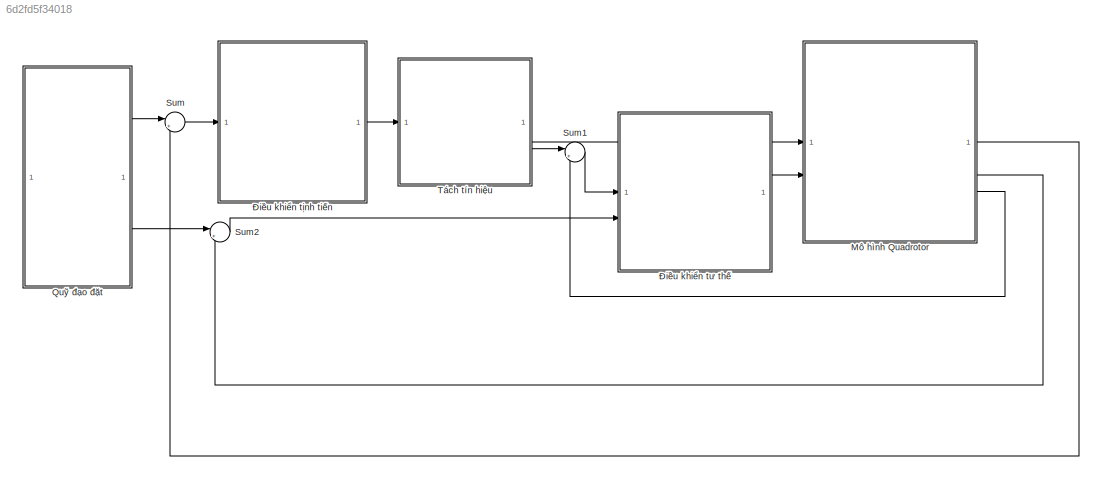
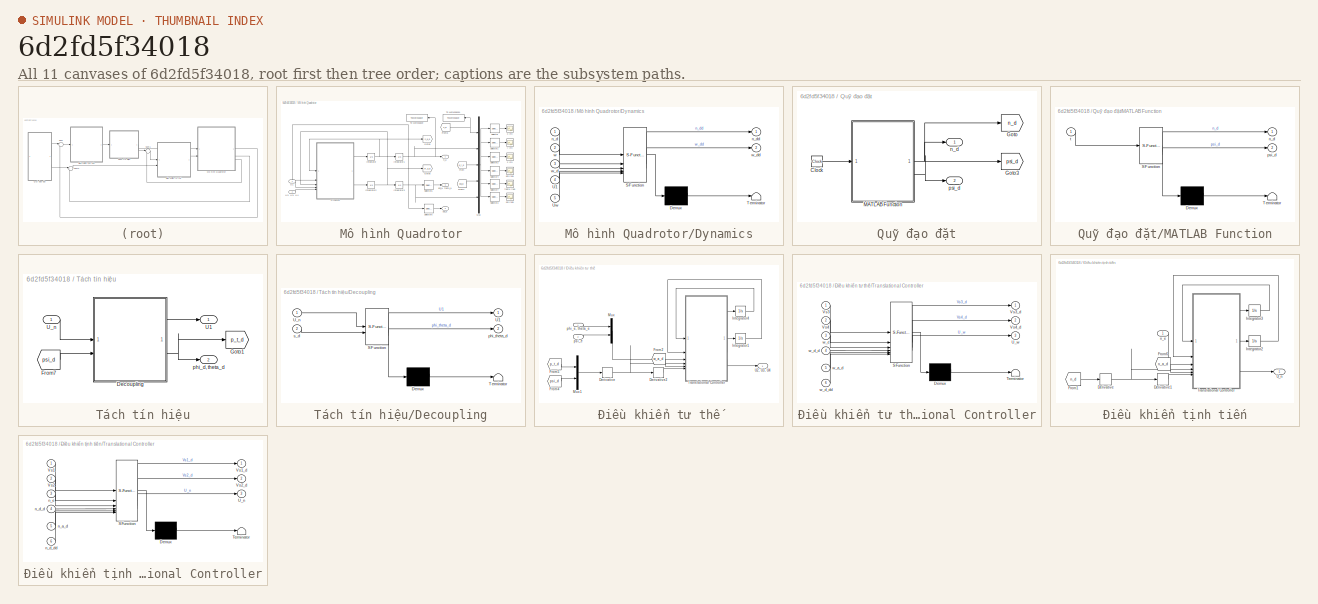
[diagram: thumbnail index - all 11 canvases of the model, root first then tree order]
MODEL slx_6d2fd5f34018
KIND model
CONFIG AbsTol = auto
CONFIG EnableMultiTasking = on
CONFIG FixedStep = 0.08
CONFIG MaxStep = auto
CONFIG MinStep = auto
CONFIG RelTol = 1e-3
CONFIG SampleTimeConstraint = Unconstrained
CONFIG SolverName = ode2
CONFIG StartTime = 0.0
CONFIG StopTime = 100
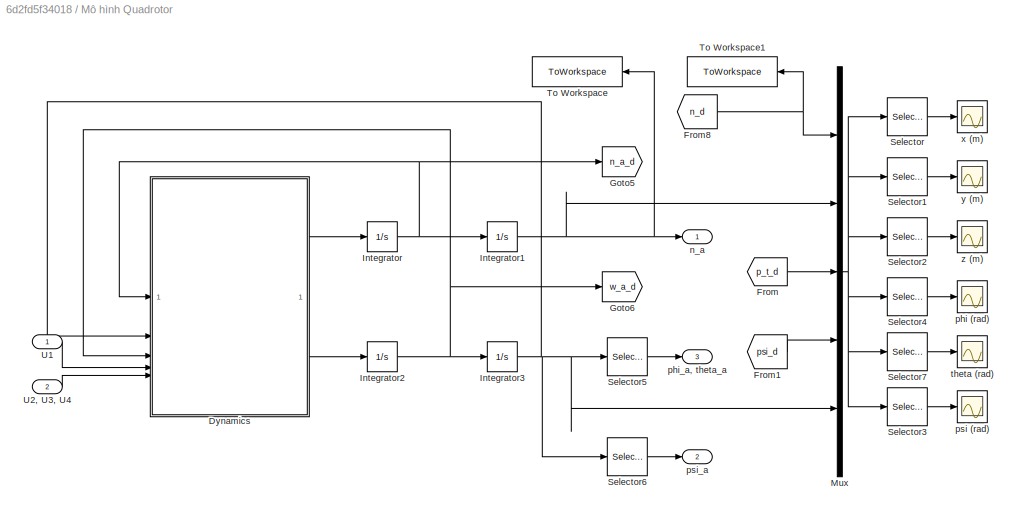
BLOCK [SubSystem] Mô hình Quadrotor
BLOCK [SubSystem] Mô hình Quadrotor/Dynamics
  ErrorFcn = Stateflow.Translate.translate
  PermitHierarchicalResolution = ExplicitOnly
  SFBlockType = MATLAB Function
  TreatAsAtomicUnit = on
BLOCK [Demux] Mô hình Quadrotor/Dynamics/ Demux 
  Outputs = 1
BLOCK [S-Function] Mô hình Quadrotor/Dynamics/ SFunction 
  EnableBusSupport = on
  FunctionName = sf_sfun
  PortCounts = [5 3]
  SFcnIsStateOwnerBlock = off
  SFunctionDeploymentMode = off
  Tag = Stateflow S-Function 1
BLOCK [Terminator] Mô hình Quadrotor/Dynamics/ Terminator 
BLOCK [Inport] Mô hình Quadrotor/Dynamics/U1
  Port = 4
BLOCK [Inport] Mô hình Quadrotor/Dynamics/Uw
  Port = 5
BLOCK [Inport] Mô hình Quadrotor/Dynamics/n_d
BLOCK [Outport] Mô hình Quadrotor/Dynamics/n_dd
BLOCK [Inport] Mô hình Quadrotor/Dynamics/w
  Port = 2
BLOCK [Inport] Mô hình Quadrotor/Dynamics/w_d
  Port = 3
BLOCK [Outport] Mô hình Quadrotor/Dynamics/w_dd
  Port = 2
BLOCK [From] Mô hình Quadrotor/From
  GotoTag = p_t_d
  TagVisibility = global
BLOCK [From] Mô hình Quadrotor/From1
  GotoTag = psi_d
  TagVisibility = global
BLOCK [From] Mô hình Quadrotor/From8
  GotoTag = n_d
  TagVisibility = global
BLOCK [Goto] Mô hình Quadrotor/Goto5
  GotoTag = n_a_d
  TagVisibility = global
BLOCK [Goto] Mô hình Quadrotor/Goto6
  GotoTag = w_a_d
  TagVisibility = global
BLOCK [Integrator] Mô hình Quadrotor/Integrator
  InitialCondition = [0, 0, 0]'
BLOCK [Integrator] Mô hình Quadrotor/Integrator1
  InitialCondition = [0, 0, 0]'
BLOCK [Integrator] Mô hình Quadrotor/Integrator2
  InitialCondition = [0, 0, 0]'
BLOCK [Integrator] Mô hình Quadrotor/Integrator3
  InitialCondition = [0, 0, 0]'
BLOCK [Mux] Mô hình Quadrotor/Mux
  DisplayOption = bar
  Inputs = 5
BLOCK [Selector] Mô hình Quadrotor/Selector
  IndexOptions = Index vector (dialog)
  Indices = [4 1]
  InputPortWidth = 12
  OutputSizes = 1
BLOCK [Selector] Mô hình Quadrotor/Selector1
  IndexOptions = Index vector (dialog)
  Indices = [5 2]
  InputPortWidth = 12
  OutputSizes = 1
BLOCK [Selector] Mô hình Quadrotor/Selector2
  IndexOptions = Index vector (dialog)
  Indices = [6 3]
  InputPortWidth = 12
  OutputSizes = 1
BLOCK [Selector] Mô hình Quadrotor/Selector3
  IndexOptions = Index vector (dialog)
  Indices = [12 9]
  InputPortWidth = 12
  OutputSizes = 1
BLOCK [Selector] Mô hình Quadrotor/Selector4
  IndexOptions = Index vector (dialog)
  Indices = [10 7]
  InputPortWidth = 12
  OutputSizes = 1
BLOCK [Selector] Mô hình Quadrotor/Selector5
  IndexOptions = Index vector (dialog)
  Indices = [1 2]
  InputPortWidth = 3
  OutputSizes = 1
BLOCK [Selector] Mô hình Quadrotor/Selector6
  IndexOptions = Index vector (dialog)
  Indices = [3]
  InputPortWidth = 3
  OutputSizes = 1
BLOCK [Selector] Mô hình Quadrotor/Selector7
  IndexOptions = Index vector (dialog)
  Indices = [11 8]
  InputPortWidth = 12
  OutputSizes = 1
BLOCK [ToWorkspace] Mô hình Quadrotor/To Workspace
  FixptAsFi = on
  MaxDataPoints = inf
  SampleTime = -1
  VariableName = n_a
BLOCK [ToWorkspace] Mô hình Quadrotor/To Workspace1
  FixptAsFi = on
  MaxDataPoints = inf
  SampleTime = -1
  VariableName = n_d
BLOCK [Inport] Mô hình Quadrotor/U1
BLOCK [Inport] Mô hình Quadrotor/U2, U3, U4
  Port = 2
BLOCK [Outport] Mô hình Quadrotor/n_a
BLOCK [Scope] Mô hình Quadrotor/phi (rad)
  Floating = off
  NumInputPorts = 1
  ScopeSpecificationString = Simulink.scopes.TimeScopeBlockCfg('CurrentConfiguration', extmgr.ConfigurationSet(extmgr.Configuration('Core','General UI',true,'FigureColor',[0.941176470588235 0.941176470588235 0.941176470588235]),extmgr.Configuration('Core','Source UI',true),extmgr.Configuration('Sources','WiredSimulink',true,'DataLoggingVariableName','ScopeData1'),extmgr.Configuration('Visuals','Time Domain',true,'SerializedDi...<+1888ch>
BLOCK [Outport] Mô hình Quadrotor/phi_a, theta_a
  Port = 3
BLOCK [Scope] Mô hình Quadrotor/psi (rad)
  Floating = off
  NumInputPorts = 1
  ScopeSpecificationString = Simulink.scopes.TimeScopeBlockCfg('CurrentConfiguration', extmgr.ConfigurationSet(extmgr.Configuration('Core','General UI',true,'FigureColor',[0.941176470588235 0.941176470588235 0.941176470588235]),extmgr.Configuration('Core','Source UI',true),extmgr.Configuration('Sources','WiredSimulink',true,'DataLoggingVariableName','ScopeData1'),extmgr.Configuration('Visuals','Time Domain',true,'SerializedDi...<+1893ch>
BLOCK [Outport] Mô hình Quadrotor/psi_a
  Port = 2
BLOCK [Scope] Mô hình Quadrotor/theta (rad)
  Floating = off
  NumInputPorts = 1
  ScopeSpecificationString = Simulink.scopes.TimeScopeBlockCfg('CurrentConfiguration', extmgr.ConfigurationSet(extmgr.Configuration('Core','General UI',true,'FigureColor',[0.941176470588235 0.941176470588235 0.941176470588235]),extmgr.Configuration('Core','Source UI',true),extmgr.Configuration('Sources','WiredSimulink',true,'DataLoggingVariableName','ScopeData2'),extmgr.Configuration('Visuals','Time Domain',true,'SerializedDi...<+1898ch>
BLOCK [Scope] Mô hình Quadrotor/x (m)
  Floating = off
  NumInputPorts = 1
  ScopeSpecificationString = Simulink.scopes.TimeScopeBlockCfg('CurrentConfiguration', extmgr.ConfigurationSet(extmgr.Configuration('Core','General UI',true,'FigureColor',[0.941176470588235 0.941176470588235 0.941176470588235]),extmgr.Configuration('Core','Source UI',true),extmgr.Configuration('Sources','WiredSimulink',true,'DataLoggingVariableName','ScopeData2'),extmgr.Configuration('Visuals','Time Domain',true,'SerializedDi...<+1869ch>
BLOCK [Scope] Mô hình Quadrotor/y (m)
  Floating = off
  NumInputPorts = 1
  ScopeSpecificationString = Simulink.scopes.TimeScopeBlockCfg('CurrentConfiguration', extmgr.ConfigurationSet(extmgr.Configuration('Core','General UI',true,'FigureColor',[0.941176470588235 0.941176470588235 0.941176470588235]),extmgr.Configuration('Core','Source UI',true),extmgr.Configuration('Sources','WiredSimulink',true,'DataLoggingVariableName','ScopeData3'),extmgr.Configuration('Visuals','Time Domain',true,'SerializedDi...<+1873ch>
BLOCK [Scope] Mô hình Quadrotor/z (m)
  Floating = off
  NumInputPorts = 1
  ScopeSpecificationString = Simulink.scopes.TimeScopeBlockCfg('CurrentConfiguration', extmgr.ConfigurationSet(extmgr.Configuration('Core','General UI',true,'FigureColor',[0.941176470588235 0.941176470588235 0.941176470588235]),extmgr.Configuration('Core','Source UI',true),extmgr.Configuration('Sources','WiredSimulink',true),extmgr.Configuration('Visuals','Time Domain',true,'SerializedDisplays',{struct('MinYLimReal','-2.75','...<+1815ch>
BLOCK [SubSystem] Quỹ đạo đặt
BLOCK [Clock] Quỹ đạo đặt/Clock
BLOCK [Goto] Quỹ đạo đặt/Goto
  GotoTag = n_d
  TagVisibility = global
BLOCK [Goto] Quỹ đạo đặt/Goto3
  GotoTag = psi_d
  TagVisibility = global
BLOCK [SubSystem] Quỹ đạo đặt/MATLAB Function
  ErrorFcn = Stateflow.Translate.translate
  PermitHierarchicalResolution = ExplicitOnly
  SFBlockType = MATLAB Function
  TreatAsAtomicUnit = on
BLOCK [Demux] Quỹ đạo đặt/MATLAB Function/ Demux 
  Outputs = 1
BLOCK [S-Function] Quỹ đạo đặt/MATLAB Function/ SFunction 
  EnableBusSupport = on
  FunctionName = sf_sfun
  PortCounts = [1 3]
  SFcnIsStateOwnerBlock = off
  SFunctionDeploymentMode = off
  Tag = Stateflow S-Function 4
BLOCK [Terminator] Quỹ đạo đặt/MATLAB Function/ Terminator 
BLOCK [Outport] Quỹ đạo đặt/MATLAB Function/n_d
BLOCK [Outport] Quỹ đạo đặt/MATLAB Function/psi_d
  Port = 2
BLOCK [Inport] Quỹ đạo đặt/MATLAB Function/t
BLOCK [Outport] Quỹ đạo đặt/n_d
BLOCK [Outport] Quỹ đạo đặt/psi_d
  Port = 2
BLOCK [Sum] Sum
  Inputs = |+-
BLOCK [Sum] Sum1
  Inputs = |+-
BLOCK [Sum] Sum2
  Inputs = |+-
BLOCK [SubSystem] Tách tín hiệu
BLOCK [SubSystem] Tách tín hiệu/Decoupling
  ErrorFcn = Stateflow.Translate.translate
  PermitHierarchicalResolution = ExplicitOnly
  SFBlockType = MATLAB Function
  TreatAsAtomicUnit = on
BLOCK [Demux] Tách tín hiệu/Decoupling/ Demux 
  Outputs = 1
BLOCK [S-Function] Tách tín hiệu/Decoupling/ SFunction 
  EnableBusSupport = on
  FunctionName = sf_sfun
  PortCounts = [2 3]
  SFcnIsStateOwnerBlock = off
  SFunctionDeploymentMode = off
  Tag = Stateflow S-Function 3
BLOCK [Terminator] Tách tín hiệu/Decoupling/ Terminator 
BLOCK [Outport] Tách tín hiệu/Decoupling/U1
BLOCK [Inport] Tách tín hiệu/Decoupling/U_n
BLOCK [Outport] Tách tín hiệu/Decoupling/phi_theta_d
  Port = 2
BLOCK [Inport] Tách tín hiệu/Decoupling/s_d
  Port = 2
BLOCK [From] Tách tín hiệu/From7
  GotoTag = psi_d
  TagVisibility = global
BLOCK [Goto] Tách tín hiệu/Goto1
  GotoTag = p_t_d
  TagVisibility = global
BLOCK [Outport] Tách tín hiệu/U1
BLOCK [Inport] Tách tín hiệu/U_n
BLOCK [Outport] Tách tín hiệu/phi_d, theta_d
  Port = 2
BLOCK [SubSystem] Điều khiển tư thế
BLOCK [Derivative] Điều khiển tư thế/Derivative
BLOCK [Derivative] Điều khiển tư thế/Derivative2
BLOCK [From] Điều khiển tư thế/From2
  GotoTag = w_a_d
  TagVisibility = global
BLOCK [From] Điều khiển tư thế/From4
  GotoTag = psi_d
  TagVisibility = global
BLOCK [From] Điều khiển tư thế/From5
  GotoTag = p_t_d
  TagVisibility = global
BLOCK [Integrator] Điều khiển tư thế/Integrator1
  InitialCondition = [0, 0, 0]'
BLOCK [Integrator] Điều khiển tư thế/Integrator4
  InitialCondition = [0, 0, 0]'
BLOCK [Mux] Điều khiển tư thế/Mux
  DisplayOption = bar
  Inputs = 2
BLOCK [Mux] Điều khiển tư thế/Mux1
  DisplayOption = bar
  Inputs = 2
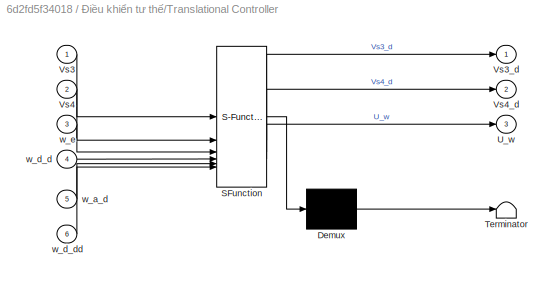
BLOCK [SubSystem] Điều khiển tư thế/Translational Controller
  ErrorFcn = Stateflow.Translate.translate
  PermitHierarchicalResolution = ExplicitOnly
  SFBlockType = MATLAB Function
  TreatAsAtomicUnit = on
BLOCK [Demux] Điều khiển tư thế/Translational Controller/ Demux 
  Outputs = 1
BLOCK [S-Function] Điều khiển tư thế/Translational Controller/ SFunction 
  EnableBusSupport = on
  FunctionName = sf_sfun
  PortCounts = [6 4]
  SFcnIsStateOwnerBlock = off
  SFunctionDeploymentMode = off
  Tag = Stateflow S-Function 5
BLOCK [Terminator] Điều khiển tư thế/Translational Controller/ Terminator 
BLOCK [Outport] Điều khiển tư thế/Translational Controller/U_w
  Port = 3
BLOCK [Inport] Điều khiển tư thế/Translational Controller/Vs3
BLOCK [Outport] Điều khiển tư thế/Translational Controller/Vs3_d
BLOCK [Inport] Điều khiển tư thế/Translational Controller/Vs4
  Port = 2
BLOCK [Outport] Điều khiển tư thế/Translational Controller/Vs4_d
  Port = 2
BLOCK [Inport] Điều khiển tư thế/Translational Controller/w_a_d
  Port = 5
BLOCK [Inport] Điều khiển tư thế/Translational Controller/w_d_d
  Port = 4
BLOCK [Inport] Điều khiển tư thế/Translational Controller/w_d_dd
  Port = 6
BLOCK [Inport] Điều khiển tư thế/Translational Controller/w_e
  Port = 3
BLOCK [Outport] Điều khiển tư thế/U2, U3, U4
BLOCK [Inport] Điều khiển tư thế/phi_e, theta_e
BLOCK [Inport] Điều khiển tư thế/psi_e
  Port = 2
BLOCK [SubSystem] Điều khiển tịnh tiến
BLOCK [Derivative] Điều khiển tịnh tiến/Derivative
BLOCK [Derivative] Điều khiển tịnh tiến/Derivative1
BLOCK [From] Điều khiển tịnh tiến/From1
  GotoTag = n_d
  TagVisibility = global
BLOCK [From] Điều khiển tịnh tiến/From6
  GotoTag = n_a_d
  TagVisibility = global
BLOCK [Integrator] Điều khiển tịnh tiến/Integrator2
  InitialCondition = [0, 0, 0]'
BLOCK [Integrator] Điều khiển tịnh tiến/Integrator3
  InitialCondition = [0, 0, 0]'
BLOCK [SubSystem] Điều khiển tịnh tiến/Translational Controller
  ErrorFcn = Stateflow.Translate.translate
  PermitHierarchicalResolution = ExplicitOnly
  SFBlockType = MATLAB Function
  TreatAsAtomicUnit = on
BLOCK [Demux] Điều khiển tịnh tiến/Translational Controller/ Demux 
  Outputs = 1
BLOCK [S-Function] Điều khiển tịnh tiến/Translational Controller/ SFunction 
  EnableBusSupport = on
  FunctionName = sf_sfun
  PortCounts = [6 4]
  SFcnIsStateOwnerBlock = off
  SFunctionDeploymentMode = off
  Tag = Stateflow S-Function 2
BLOCK [Terminator] Điều khiển tịnh tiến/Translational Controller/ Terminator 
BLOCK [Outport] Điều khiển tịnh tiến/Translational Controller/U_n
  Port = 3
BLOCK [Inport] Điều khiển tịnh tiến/Translational Controller/Vs1
BLOCK [Outport] Điều khiển tịnh tiến/Translational Controller/Vs1_d
BLOCK [Inport] Điều khiển tịnh tiến/Translational Controller/Vs2
  Port = 2
BLOCK [Outport] Điều khiển tịnh tiến/Translational Controller/Vs2_d
  Port = 2
BLOCK [Inport] Điều khiển tịnh tiến/Translational Controller/n_a_d
  Port = 5
BLOCK [Inport] Điều khiển tịnh tiến/Translational Controller/n_d_d
  Port = 4
BLOCK [Inport] Điều khiển tịnh tiến/Translational Controller/n_d_dd
  Port = 6
BLOCK [Inport] Điều khiển tịnh tiến/Translational Controller/n_e
  Port = 3
BLOCK [Outport] Điều khiển tịnh tiến/U_n
BLOCK [Inport] Điều khiển tịnh tiến/n_e
LINE Mô hình Quadrotor/Dynamics:1 -> Mô hình Quadrotor/Integrator:1
LINE Mô hình Quadrotor/Dynamics:2 -> Mô hình Quadrotor/Integrator2:1
LINE Mô hình Quadrotor/From1:1 -> Mô hình Quadrotor/Mux:4
NET Mô hình Quadrotor/From8:1 -> Mô hình Quadrotor/Mux:1, Mô hình Quadrotor/To Workspace1:1
LINE Mô hình Quadrotor/From:1 -> Mô hình Quadrotor/Mux:3
NET Mô hình Quadrotor/Integrator1:1 -> Mô hình Quadrotor/Mux:2, Mô hình Quadrotor/To Workspace:1, Mô hình Quadrotor/n_a:1
NET Mô hình Quadrotor/Integrator2:1 -> Mô hình Quadrotor/Dynamics:3, Mô hình Quadrotor/Goto6:1, Mô hình Quadrotor/Integrator3:1
NET Mô hình Quadrotor/Integrator3:1 -> Mô hình Quadrotor/Dynamics:2, Mô hình Quadrotor/Mux:5, Mô hình Quadrotor/Selector5:1, Mô hình Quadrotor/Selector6:1
NET Mô hình Quadrotor/Integrator:1 -> Mô hình Quadrotor/Dynamics:1, Mô hình Quadrotor/Goto5:1, Mô hình Quadrotor/Integrator1:1
NET Mô hình Quadrotor/Mux:1 -> Mô hình Quadrotor/Selector1:1, Mô hình Quadrotor/Selector2:1, Mô hình Quadrotor/Selector3:1, Mô hình Quadrotor/Selector4:1, Mô hình Quadrotor/Selector7:1, Mô hình Quadrotor/Selector:1
LINE Mô hình Quadrotor/Selector1:1 -> Mô hình Quadrotor/y (m):1
LINE Mô hình Quadrotor/Selector2:1 -> Mô hình Quadrotor/z (m):1
LINE Mô hình Quadrotor/Selector3:1 -> Mô hình Quadrotor/psi (rad):1
LINE Mô hình Quadrotor/Selector4:1 -> Mô hình Quadrotor/phi (rad):1
LINE Mô hình Quadrotor/Selector5:1 -> Mô hình Quadrotor/phi_a, theta_a:1
LINE Mô hình Quadrotor/Selector6:1 -> Mô hình Quadrotor/psi_a:1
LINE Mô hình Quadrotor/Selector7:1 -> Mô hình Quadrotor/theta (rad):1
LINE Mô hình Quadrotor/Selector:1 -> Mô hình Quadrotor/x (m):1
LINE Mô hình Quadrotor/U1:1 -> Mô hình Quadrotor/Dynamics:4
LINE Mô hình Quadrotor/U2, U3, U4:1 -> Mô hình Quadrotor/Dynamics:5
LINE Mô hình Quadrotor:1 -> Sum:2
LINE Mô hình Quadrotor:2 -> Sum2:2
LINE Mô hình Quadrotor:3 -> Sum1:2
LINE Quỹ đạo đặt/Clock:1 -> Quỹ đạo đặt/MATLAB Function:1
NET Quỹ đạo đặt/MATLAB Function:1 -> Quỹ đạo đặt/Goto:1, Quỹ đạo đặt/n_d:1
NET Quỹ đạo đặt/MATLAB Function:2 -> Quỹ đạo đặt/Goto3:1, Quỹ đạo đặt/psi_d:1
LINE Quỹ đạo đặt:1 -> Sum:1
LINE Quỹ đạo đặt:2 -> Sum2:1
LINE Sum1:1 -> Điều khiển tư thế:1
LINE Sum2:1 -> Điều khiển tư thế:2
LINE Sum:1 -> Điều khiển tịnh tiến:1
LINE Tách tín hiệu/Decoupling:1 -> Tách tín hiệu/U1:1
NET Tách tín hiệu/Decoupling:2 -> Tách tín hiệu/Goto1:1, Tách tín hiệu/phi_d, theta_d:1
LINE Tách tín hiệu/From7:1 -> Tách tín hiệu/Decoupling:2
LINE Tách tín hiệu/U_n:1 -> Tách tín hiệu/Decoupling:1
LINE Tách tín hiệu:1 -> Mô hình Quadrotor:1
LINE Tách tín hiệu:2 -> Sum1:1
LINE Điều khiển tư thế/Derivative2:1 -> Điều khiển tư thế/Translational Controller:6
NET Điều khiển tư thế/Derivative:1 -> Điều khiển tư thế/Derivative2:1, Điều khiển tư thế/Translational Controller:4
LINE Điều khiển tư thế/From2:1 -> Điều khiển tư thế/Translational Controller:5
LINE Điều khiển tư thế/From4:1 -> Điều khiển tư thế/Mux1:2
LINE Điều khiển tư thế/From5:1 -> Điều khiển tư thế/Mux1:1
LINE Điều khiển tư thế/Integrator1:1 -> Điều khiển tư thế/Translational Controller:2
LINE Điều khiển tư thế/Integrator4:1 -> Điều khiển tư thế/Translational Controller:1
LINE Điều khiển tư thế/Mux1:1 -> Điều khiển tư thế/Derivative:1
LINE Điều khiển tư thế/Mux:1 -> Điều khiển tư thế/Translational Controller:3
LINE Điều khiển tư thế/Translational Controller:1 -> Điều khiển tư thế/Integrator4:1
LINE Điều khiển tư thế/Translational Controller:2 -> Điều khiển tư thế/Integrator1:1
LINE Điều khiển tư thế/Translational Controller:3 -> Điều khiển tư thế/U2, U3, U4:1
LINE Điều khiển tư thế/phi_e, theta_e:1 -> Điều khiển tư thế/Mux:1
LINE Điều khiển tư thế/psi_e:1 -> Điều khiển tư thế/Mux:2
LINE Điều khiển tư thế:1 -> Mô hình Quadrotor:2
LINE Điều khiển tịnh tiến/Derivative1:1 -> Điều khiển tịnh tiến/Translational Controller:6
NET Điều khiển tịnh tiến/Derivative:1 -> Điều khiển tịnh tiến/Derivative1:1, Điều khiển tịnh tiến/Translational Controller:4
LINE Điều khiển tịnh tiến/From1:1 -> Điều khiển tịnh tiến/Derivative:1
LINE Điều khiển tịnh tiến/From6:1 -> Điều khiển tịnh tiến/Translational Controller:5
LINE Điều khiển tịnh tiến/Integrator2:1 -> Điều khiển tịnh tiến/Translational Controller:2
LINE Điều khiển tịnh tiến/Integrator3:1 -> Điều khiển tịnh tiến/Translational Controller:1
LINE Điều khiển tịnh tiến/Translational Controller:1 -> Điều khiển tịnh tiến/Integrator3:1
LINE Điều khiển tịnh tiến/Translational Controller:2 -> Điều khiển tịnh tiến/Integrator2:1
LINE Điều khiển tịnh tiến/Translational Controller:3 -> Điều khiển tịnh tiến/U_n:1
LINE Điều khiển tịnh tiến/n_e:1 -> Điều khiển tịnh tiến/Translational Controller:3
LINE Điều khiển tịnh tiến:1 -> Tách tín hiệu:1
note: NET lines group one-source signal fan-out (src -> all destinations, sorted); 1:1 wires keep LINE
CHART Mô hình Quadrotor/Dynamics states=1 transitions=1
  STATE_LABEL 'eML_blk_kernel()'
  STATE_LABEL "SCRIPT:\nfunction [n_dd, w_dd] = fcn(n_d, w, w_d, U1, Uw)\n    % Parameters\n    m = 0.486;\n    g = 9.810;\n    Mm = diag([m, m, m]);\n    Gg = [0, 0, -m*g]';\n    l = diag([0.250, 0.250, 1]);\n    I = diag([4.856e-3, 4.856e-3, 8.801e-3]);\n    cdn = diag([5.560e-4, 5.560e-4, 6.350e-4]);\n    kdn = diag([1e-4, 1e-4, 1e-4]);\n    kp = 3.230e-7;\n    kd = 2.980e-5;\n    W_to_U = [ kd,  kd, kd,  kd;\n            ...<+967ch>"
CHART Điều khiển tịnh tiến/Translational
Controller states=1 transitions=1
  STATE_LABEL 'eML_blk_kernel()'
  STATE_LABEL 'SCRIPT:\nfunction [Vs1_d, Vs2_d, U_n] = fcn(Vs1, Vs2, n_e, n_d_d, n_a_d, n_d_dd)\n    A1 = diag([1, 1, 1]);\n    B1 = diag([2, 2, 2]);\n    Vs1_d = -(A1 + abs(diag(n_e)))*Vs1 + B1*n_e;\n    \n    A2 = diag([4, 4, 4]);\n    B2 = diag([8, 8, 8]);\n    K1 = diag([0.1, 0.1, 0.1]);\n    n_ev = n_d_d + K1*Vs1 - n_a_d;\n    Vs2_d = -(A2 + abs(diag(n_ev)))*Vs2 + B2*n_ev;\n\n    K2 = diag([1, 1, 1]);\n    f_n = [0, 0, ...<+58ch>'
CHART Tách tín hiệu/Decoupling states=1 transitions=1
  STATE_LABEL 'eML_blk_kernel()'
  STATE_LABEL "SCRIPT:\nfunction [U1, phi_theta_d] = fcn(U_n, s_d)\n    m = 0.486;\n    g = 9.810;\n    t_d = atan((U_n(1)*cos(s_d) + U_n(2)*sin(s_d))/(U_n(3) + g));\n    p_d = atan(cos(t_d)*(U_n(1)*sin(s_d) - U_n(2)*cos(s_d))/(U_n(3) + g));\n    phi_theta_d = [p_d, t_d]';\n    U1 = m*sqrt(U_n(1)^2 + U_n(2)^2 + (U_n(3) + g)^2);\nend"
CHART Quỹ đạo đặt/MATLAB Function states=1 transitions=1
  STATE_LABEL 'eML_blk_kernel()'
  STATE_LABEL "SCRIPT:\nfunction [n_d, psi_d] = fcn(t)\n    n_d = [1 + 8*sin(0.1*t - pi/4), -8 + 8*cos(0.1*t - pi/4), 2 + 0.2*t]';\n    psi_d = 0;\nend"
CHART Điều khiển tư thế/Translational
Controller states=1 transitions=1
  STATE_LABEL 'eML_blk_kernel()'
  STATE_LABEL 'SCRIPT:\nfunction [Vs3_d, Vs4_d, U_w] = fcn(Vs3, Vs4, w_e, w_d_d, w_a_d, w_d_dd)\n    A3 = diag([5, 5, 5]);\n    B3 = diag([1, 1, 1]);\n    Vs3_d = -(A3 + abs(diag(w_e)))*Vs3 + B3*w_e;\n    \n    A4 = diag([2, 2, 2]);\n    B4 = diag([10, 10, 10]);\n    K3 = diag([3, 3, 3]);\n    n_eu = w_d_d + K3*Vs3 - w_a_d;\n    Vs4_d = -(A4 + abs(diag(n_eu)))*Vs4 + B4*n_eu;\n\n    K4 = diag([5, 5, 5]);\n    w_d_dd1 = [0, 0,...<+189ch>'
CHART  states=0 transitions=0
CHART  states=0 transitions=0
CHART  states=0 transitions=0
CHART  states=0 transitions=0
CHART  states=0 transitions=0
